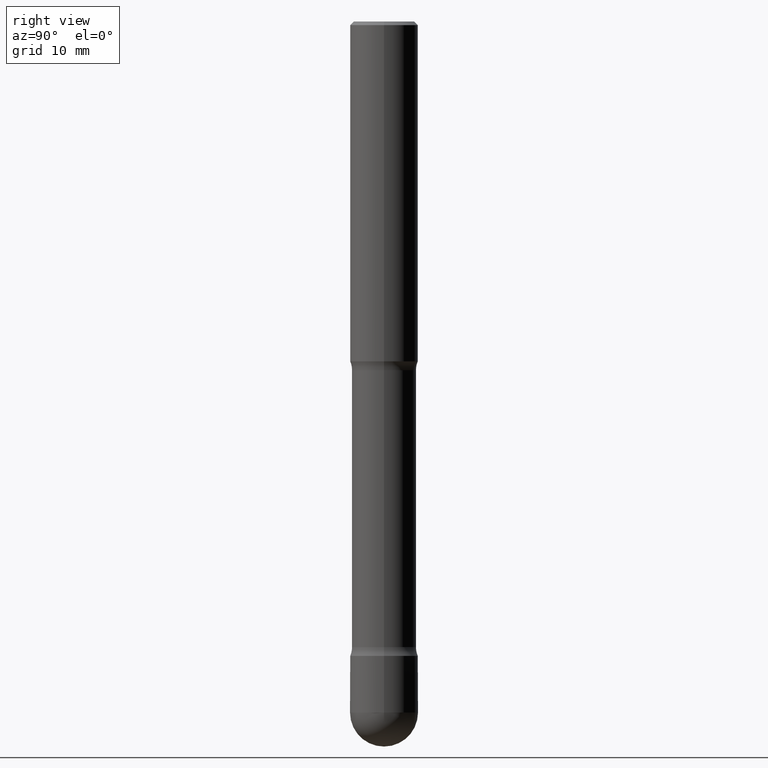
[diagram: clean part render]
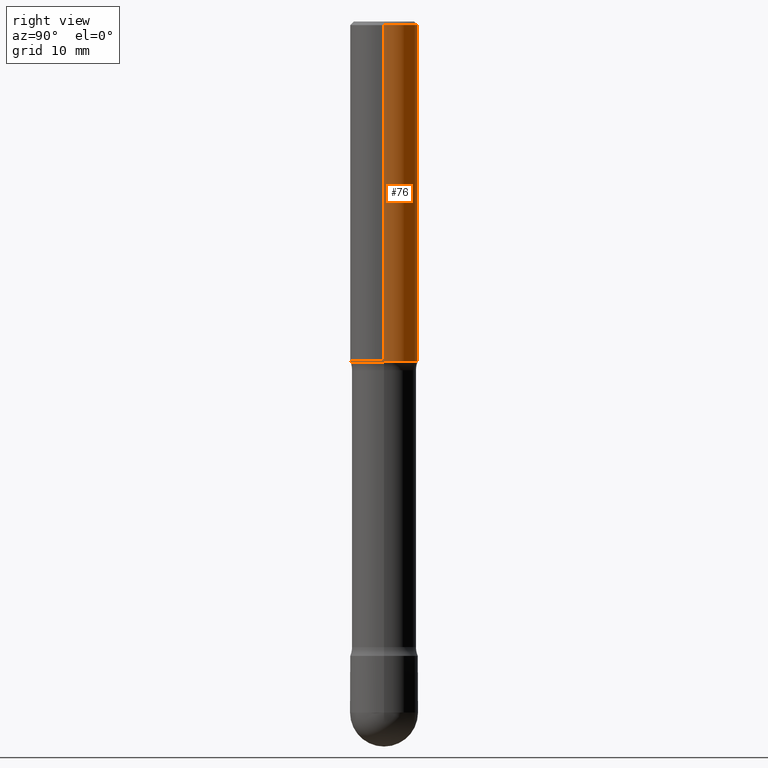
[diagram: same view with one face highlighted and labeled with its STEP entity id]
A machine part, right view. The second image highlights one B-rep face of the part: STEP entity #76.
In plain terms, the highlighted cylindrical surface (edge-blend (fillet) strip) has radius 4.7625 mm, axis along (0, -0, -1).
Its self-contained STEP definition (entity closure, byte-faithful):
#1 = VECTOR ( 'NONE', #376, 39.37007874015748143 ) ;
#3 = EDGE_LOOP ( 'NONE', ( #392, #314, #312, #436 ) ) ;
#9 = CARTESIAN_POINT ( 'NONE',  ( 0.1874999999999997502, -1.356173001359022508E-15, -0.01999999999999978531 ) ) ;
#74 = FACE_OUTER_BOUND ( 'NONE', #3, .T. ) ;
#76 = ADVANCED_FACE ( 'NONE', ( #74 ), #407, .T. ) ;
#91 = CIRCLE ( 'NONE', #480, 0.1874999999999997502 ) ;
#92 = AXIS2_PLACEMENT_3D ( 'NONE', #296, #292, #419 ) ;
#98 = CARTESIAN_POINT ( 'NONE',  ( 0.1875000000000000278, -4.594521943136043171E-15, -1.875000000000001776 ) ) ;
#108 = LINE ( 'NONE', #203, #459 ) ;
#117 = EDGE_CURVE ( 'NONE', #481, #382, #108, .T. ) ;
#125 = VERTEX_POINT ( 'NONE', #539 ) ;
#155 = LINE ( 'NONE', #330, #1 ) ;
#159 = EDGE_CURVE ( 'NONE', #125, #382, #494, .T. ) ;
#176 = EDGE_CURVE ( 'NONE', #514, #125, #155, .T. ) ;
#194 = CARTESIAN_POINT ( 'NONE',  ( -0.1874999999999997502, 1.239475875289310921E-15, -0.01999999999999978531 ) ) ;
#202 = DIRECTION ( 'NONE',  ( 2.445468806185136597E-29, -3.491481338843145583E-15, -1.000000000000000000 ) ) ;
#203 = CARTESIAN_POINT ( 'NONE',  ( 0.1874999999999998890, -1.350652806053316993E-14, -3.500000000000000000 ) ) ;
#272 = AXIS2_PLACEMENT_3D ( 'NONE', #548, #369, #504 ) ;
#292 = DIRECTION ( 'NONE',  ( 2.445468806185136597E-29, -3.491481338843145583E-15, -1.000000000000000000 ) ) ;
#296 = CARTESIAN_POINT ( 'NONE',  ( 4.585254011597135603E-29, -6.546527510330903440E-15, -1.875000000000001776 ) ) ;
#312 = ORIENTED_EDGE ( 'NONE', *, *, #159, .F. ) ;
#314 = ORIENTED_EDGE ( 'NONE', *, *, #117, .T. ) ;
#330 = CARTESIAN_POINT ( 'NONE',  ( -0.1874999999999998890, -1.091087918388483433E-14, -3.500000000000000000 ) ) ;
#369 = DIRECTION ( 'NONE',  ( 2.445468806185136597E-29, -3.491481338843145583E-15, -1.000000000000000000 ) ) ;
#374 = DIRECTION ( 'NONE',  ( 2.445468806185136877E-29, -3.491481338843145188E-15, -1.000000000000000000 ) ) ;
#376 = DIRECTION ( 'NONE',  ( 2.445468806185136877E-29, -3.491481338843145188E-15, -1.000000000000000000 ) ) ;
#382 = VERTEX_POINT ( 'NONE', #98 ) ;
#392 = ORIENTED_EDGE ( 'NONE', *, *, #563, .T. ) ;
#407 = CYLINDRICAL_SURFACE ( 'NONE', #272, 0.1874999999999998890 ) ;
#417 = DIRECTION ( 'NONE',  ( -1.000000000000000000, 6.982962677686265133E-15, 0.000000000000000000 ) ) ;
#419 = DIRECTION ( 'NONE',  ( -1.000000000000000000, 6.982962677686266711E-15, 0.000000000000000000 ) ) ;
#436 = ORIENTED_EDGE ( 'NONE', *, *, #176, .F. ) ;
#457 = CARTESIAN_POINT ( 'NONE',  ( 4.890937612370220610E-31, -6.982962677686216421E-17, -0.01999999999999978531 ) ) ;
#459 = VECTOR ( 'NONE', #374, 39.37007874015748143 ) ;
#480 = AXIS2_PLACEMENT_3D ( 'NONE', #457, #202, #417 ) ;
#481 = VERTEX_POINT ( 'NONE', #9 ) ;
#494 = CIRCLE ( 'NONE', #92, 0.1875000000000000278 ) ;
#504 = DIRECTION ( 'NONE',  ( -1.000000000000000000, 6.982962677686266711E-15, 0.000000000000000000 ) ) ;
#514 = VERTEX_POINT ( 'NONE', #194 ) ;
#539 = CARTESIAN_POINT ( 'NONE',  ( -0.1875000000000000278, -5.237222008264728432E-15, -1.875000000000001776 ) ) ;
#548 = CARTESIAN_POINT ( 'NONE',  ( 8.559140821647976968E-29, -1.222018468595100934E-14, -3.500000000000000000 ) ) ;
#563 = EDGE_CURVE ( 'NONE', #514, #481, #91, .T. ) ;